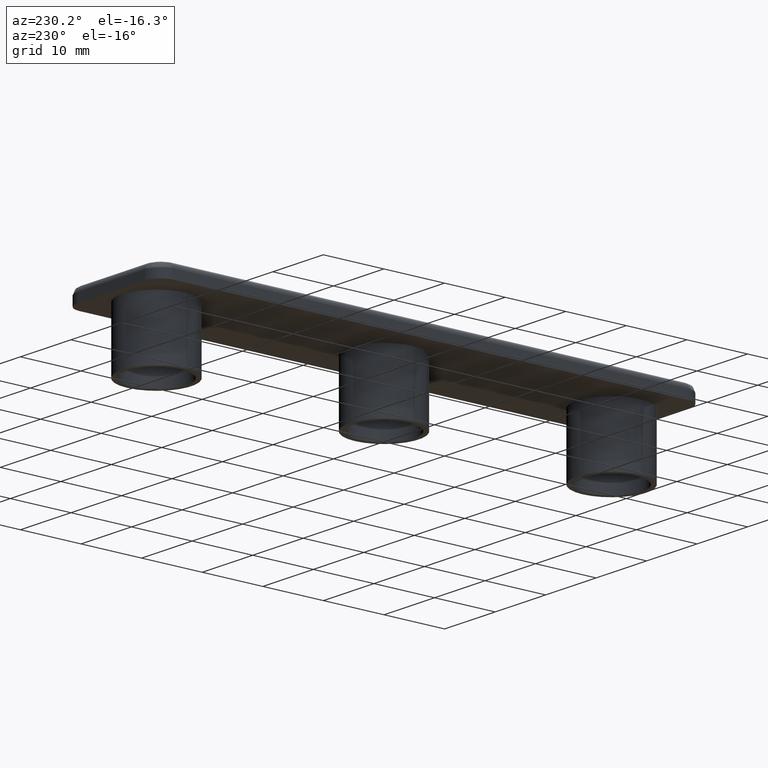
[diagram: clean part render]
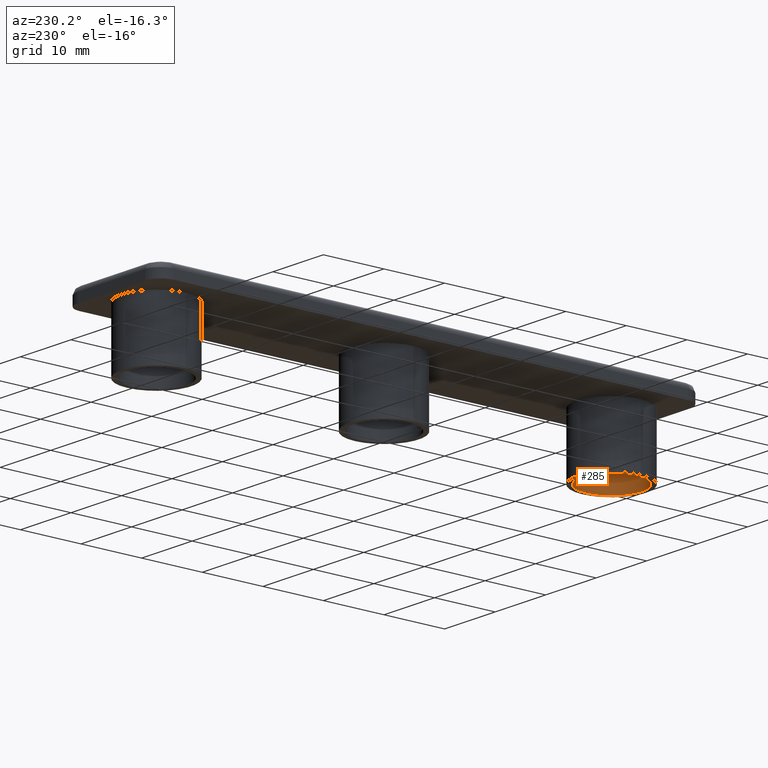
[diagram: same view with one face highlighted and labeled with its STEP entity id]
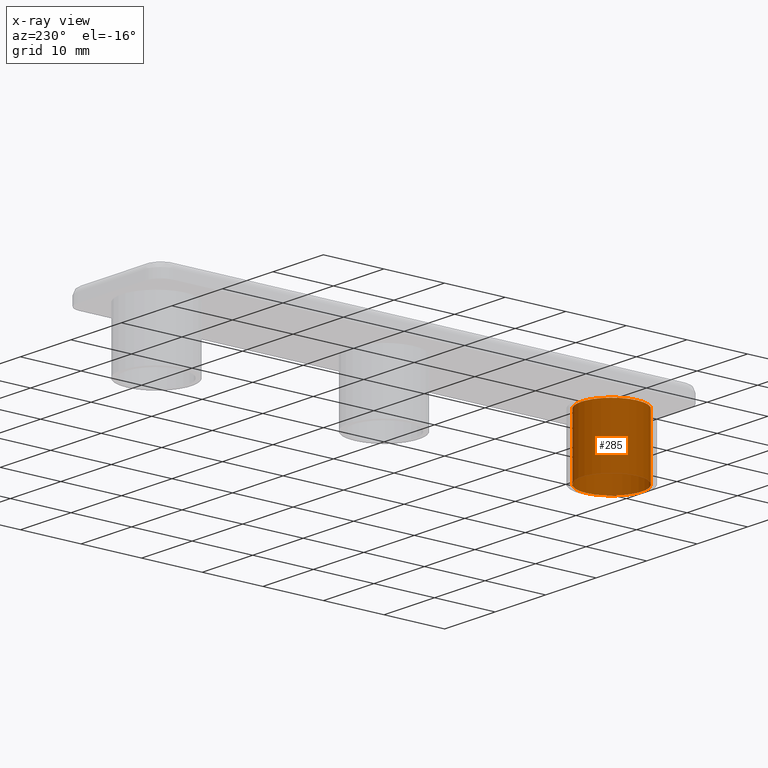
[diagram: x-ray of the same camera — body ghosted, the highlighted face saturated]
A machine part, auxiliary view. The second image highlights one B-rep face of the part: STEP entity #285.
The next image is the same camera in x-ray: the body ghosted, the highlighted face saturated — about 0% of this face is hidden behind the body in this view.
In plain terms, the highlighted cylindrical surface (bore or boss wall) has radius 5 mm, axis along (-0, 0, 1).
Its self-contained STEP definition (entity closure, byte-faithful):
#195=CARTESIAN_POINT('',(4.999999999980001,-37.549999999849661,6.123234E-016));
#196=VERTEX_POINT('',#195);
#197=CARTESIAN_POINT('',(-4.999999999979991,-37.549999999849661,-6.123234E-016));
#198=VERTEX_POINT('',#197);
#199=CARTESIAN_POINT('',(0.0,-37.549999999849661,0.0));
#200=DIRECTION('',(-1.224647E-016,0.0,1.0));
#201=DIRECTION('',(-1.0,0.0,-1.224647E-016));
#202=AXIS2_PLACEMENT_3D('',#199,#200,#201);
#203=CIRCLE('',#202,4.999999999980001);
#204=EDGE_CURVE('',#196,#198,#203,.T.);
#206=CARTESIAN_POINT('',(0.0,-37.549999999849661,0.0));
#207=DIRECTION('',(-1.224647E-016,0.0,1.0));
#208=DIRECTION('',(-1.0,0.0,-1.224647E-016));
#209=AXIS2_PLACEMENT_3D('',#206,#207,#208);
#210=CIRCLE('',#209,4.999999999980001);
#211=EDGE_CURVE('',#198,#196,#210,.T.);
#251=CARTESIAN_POINT('',(0.0,-37.549999999849661,0.0));
#252=DIRECTION('',(-1.224647E-016,0.0,1.0));
#253=DIRECTION('',(-1.0,-2.449294E-016,-1.224647E-016));
#254=AXIS2_PLACEMENT_3D('',#251,#252,#253);
#255=CYLINDRICAL_SURFACE('',#254,4.999999999980001);
#256=CARTESIAN_POINT('',(4.999999999980002,-37.549999999849661,-10.0));
#257=VERTEX_POINT('',#256);
#258=CARTESIAN_POINT('',(-4.999999999979990,-37.549999999849661,-10.0));
#259=VERTEX_POINT('',#258);
#260=CARTESIAN_POINT('',(1.224647E-015,-37.549999999849661,-10.0));
#261=DIRECTION('',(-1.224647E-016,0.0,1.0));
#262=DIRECTION('',(-1.0,0.0,-1.224647E-016));
#263=AXIS2_PLACEMENT_3D('',#260,#261,#262);
#264=CIRCLE('',#263,4.999999999980001);
#265=EDGE_CURVE('',#257,#259,#264,.T.);
#266=ORIENTED_EDGE('',*,*,#265,.F.);
#267=CARTESIAN_POINT('',(1.224647E-015,-37.549999999849661,-10.0));
#268=DIRECTION('',(-1.224647E-016,0.0,1.0));
#269=DIRECTION('',(-1.0,0.0,-1.224647E-016));
#270=AXIS2_PLACEMENT_3D('',#267,#268,#269);
#271=CIRCLE('',#270,4.999999999980001);
#272=EDGE_CURVE('',#259,#257,#271,.T.);
#273=ORIENTED_EDGE('',*,*,#272,.F.);
#274=CARTESIAN_POINT('',(-4.999999999979991,-37.549999999849661,-6.123234E-016));
#275=DIRECTION('',(0.0,0.0,-1.0));
#276=VECTOR('',#275,10.0);
#277=LINE('',#274,#276);
#278=EDGE_CURVE('',#198,#259,#277,.T.);
#279=ORIENTED_EDGE('',*,*,#278,.F.);
#280=ORIENTED_EDGE('',*,*,#211,.T.);
#281=ORIENTED_EDGE('',*,*,#204,.T.);
#282=ORIENTED_EDGE('',*,*,#278,.T.);
#283=EDGE_LOOP('',(#266,#273,#279,#280,#281,#282));
#284=FACE_OUTER_BOUND('',#283,.T.);
#285=ADVANCED_FACE('',(#284),#255,.F.);